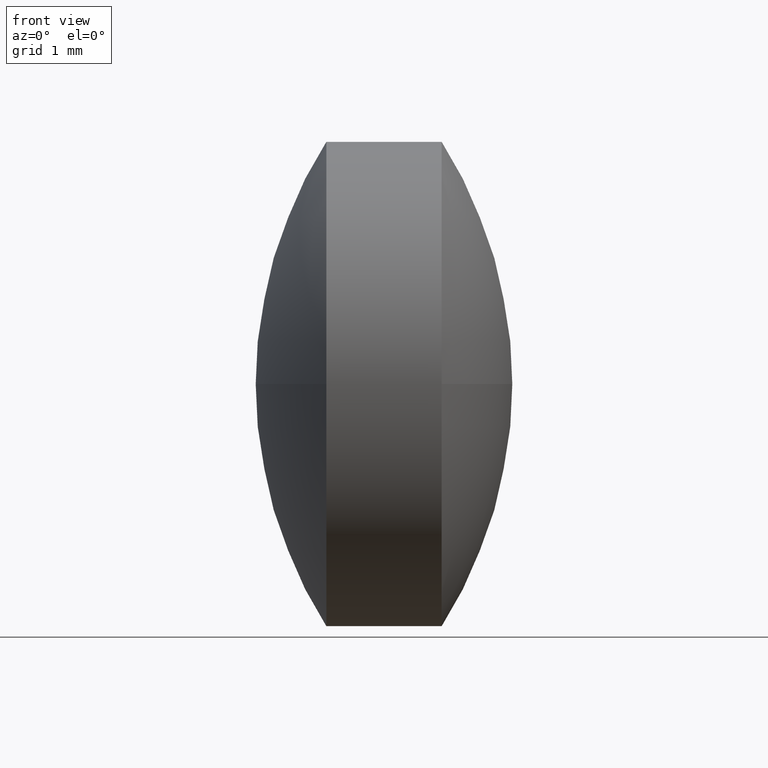
[diagram: clean part render]
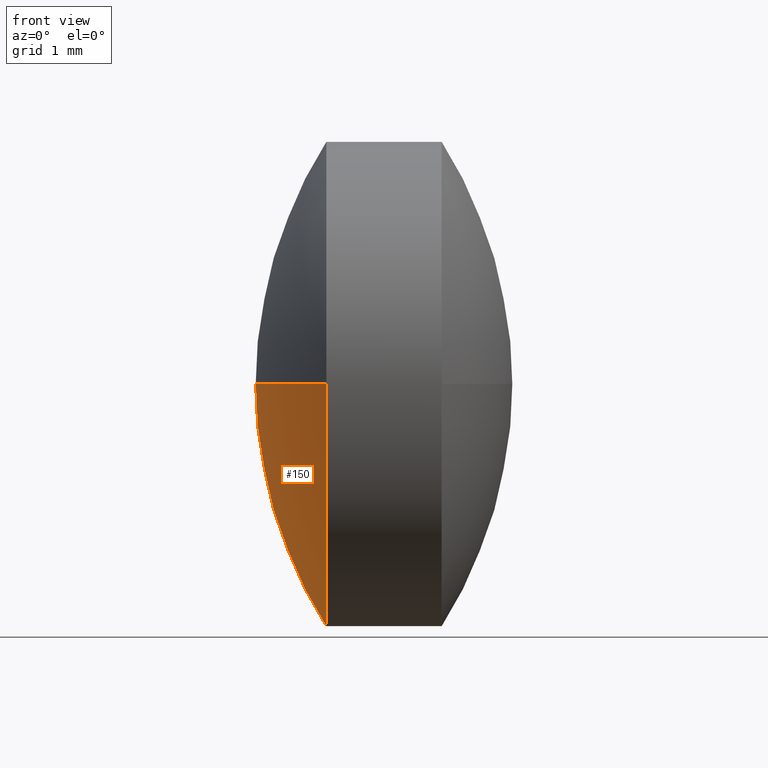
[diagram: same view with one face highlighted and labeled with its STEP entity id]
A machine part, front view. The second image highlights one B-rep face of the part: STEP entity #150.
In plain terms, the highlighted spherical surface has radius 5.8596 mm.
Its self-contained STEP definition (entity closure, byte-faithful):
#7 = AXIS2_PLACEMENT_3D ( 'NONE', #19, #306, #342 ) ;
#9 = DIRECTION ( 'NONE',  ( 0.0000000000000000000, 1.000000000000000000, 0.0000000000000000000 ) ) ;
#15 = CARTESIAN_POINT ( 'NONE',  ( 25.63531401395296800, 12.05837547940992500, 0.0000000000000000000 ) ) ;
#19 = CARTESIAN_POINT ( 'NONE',  ( 20.69444092659728800, 12.05837547940993200, 0.0000000000000000000 ) ) ;
#21 = DIRECTION ( 'NONE',  ( 1.000000000000000000, 0.0000000000000000000, 0.0000000000000000000 ) ) ;
#44 = DIRECTION ( 'NONE',  ( -0.0000000000000000000, 0.0000000000000000000, -1.000000000000000000 ) ) ;
#51 = CARTESIAN_POINT ( 'NONE',  ( 25.63531401395296800, 12.05837547940992500, 0.0000000000000000000 ) ) ;
#53 = CARTESIAN_POINT ( 'NONE',  ( 20.69444092659728800, 12.05837547940993200, -3.150012600050391900 ) ) ;
#65 = VERTEX_POINT ( 'NONE', #68 ) ;
#68 = CARTESIAN_POINT ( 'NONE',  ( 20.69444092659728800, 8.908362879359534900, -3.857652847925542500E-016 ) ) ;
#77 = ORIENTED_EDGE ( 'NONE', *, *, #317, .F. ) ;
#79 = AXIS2_PLACEMENT_3D ( 'NONE', #226, #99, #339 ) ;
#88 = CIRCLE ( 'NONE', #7, 3.150012600050391900 ) ;
#92 = AXIS2_PLACEMENT_3D ( 'NONE', #51, #98, #250 ) ;
#98 = DIRECTION ( 'NONE',  ( 0.0000000000000000000, 1.224646799147353200E-016, -1.000000000000000000 ) ) ;
#99 = DIRECTION ( 'NONE',  ( -1.000000000000000000, -0.0000000000000000000, -0.0000000000000000000 ) ) ;
#116 = VERTEX_POINT ( 'NONE', #166 ) ;
#118 = DIRECTION ( 'NONE',  ( -0.0000000000000000000, 0.0000000000000000000, 1.000000000000000000 ) ) ;
#123 = AXIS2_PLACEMENT_3D ( 'NONE', #254, #118, #21 ) ;
#126 = EDGE_LOOP ( 'NONE', ( #200, #309, #316, #77 ) ) ;
#144 = CARTESIAN_POINT ( 'NONE',  ( 19.77572305162190200, 12.05837547940992500, 0.0000000000000000000 ) ) ;
#150 = ADVANCED_FACE ( 'NONE', ( #257 ), #216, .T. ) ;
#166 = CARTESIAN_POINT ( 'NONE',  ( 20.69444092659728800, 15.20838807946032200, 0.0000000000000000000 ) ) ;
#200 = ORIENTED_EDGE ( 'NONE', *, *, #328, .T. ) ;
#202 = CIRCLE ( 'NONE', #123, 5.859590962331063600 ) ;
#216 = SPHERICAL_SURFACE ( 'NONE', #291, 5.859590962331065400 ) ;
#218 = CIRCLE ( 'NONE', #79, 3.150012600050391900 ) ;
#226 = CARTESIAN_POINT ( 'NONE',  ( 20.69444092659728800, 12.05837547940993200, 0.0000000000000000000 ) ) ;
#250 = DIRECTION ( 'NONE',  ( 0.0000000000000000000, 1.000000000000000000, 1.224646799147352700E-016 ) ) ;
#254 = CARTESIAN_POINT ( 'NONE',  ( 25.63531401395296800, 12.05837547940992500, 0.0000000000000000000 ) ) ;
#257 = FACE_OUTER_BOUND ( 'NONE', #126, .T. ) ;
#258 = VERTEX_POINT ( 'NONE', #53 ) ;
#268 = CIRCLE ( 'NONE', #92, 5.859590962331067100 ) ;
#276 = EDGE_CURVE ( 'NONE', #65, #320, #268, .T. ) ;
#288 = EDGE_CURVE ( 'NONE', #258, #65, #88, .T. ) ;
#291 = AXIS2_PLACEMENT_3D ( 'NONE', #15, #44, #9 ) ;
#306 = DIRECTION ( 'NONE',  ( -1.000000000000000000, -0.0000000000000000000, -0.0000000000000000000 ) ) ;
#309 = ORIENTED_EDGE ( 'NONE', *, *, #288, .T. ) ;
#316 = ORIENTED_EDGE ( 'NONE', *, *, #276, .T. ) ;
#317 = EDGE_CURVE ( 'NONE', #116, #320, #202, .T. ) ;
#320 = VERTEX_POINT ( 'NONE', #144 ) ;
#328 = EDGE_CURVE ( 'NONE', #116, #258, #218, .T. ) ;
#339 = DIRECTION ( 'NONE',  ( 0.0000000000000000000, 0.0000000000000000000, 1.000000000000000000 ) ) ;
#342 = DIRECTION ( 'NONE',  ( 0.0000000000000000000, 0.0000000000000000000, 1.000000000000000000 ) ) ;